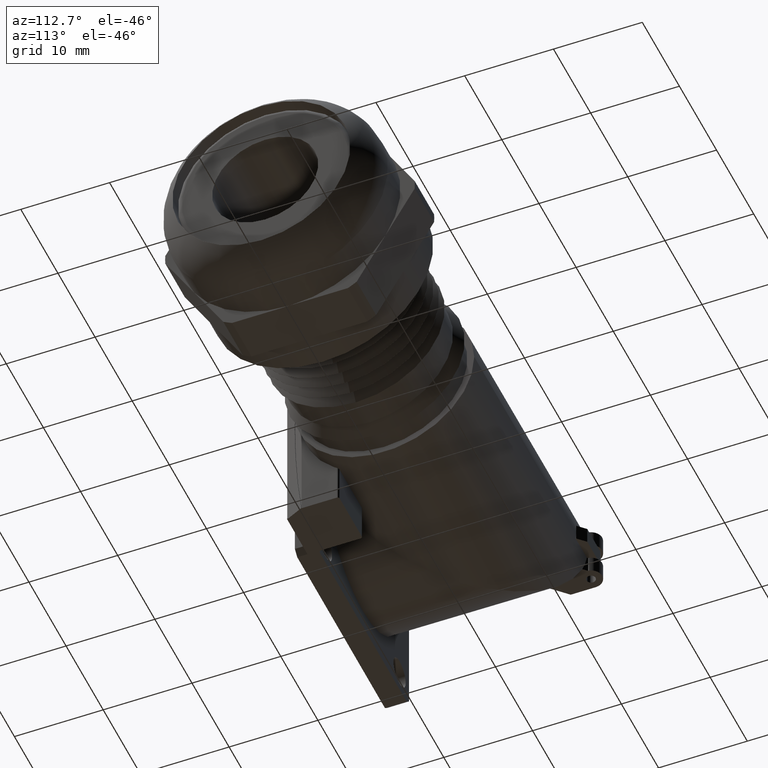
[diagram: clean part render]
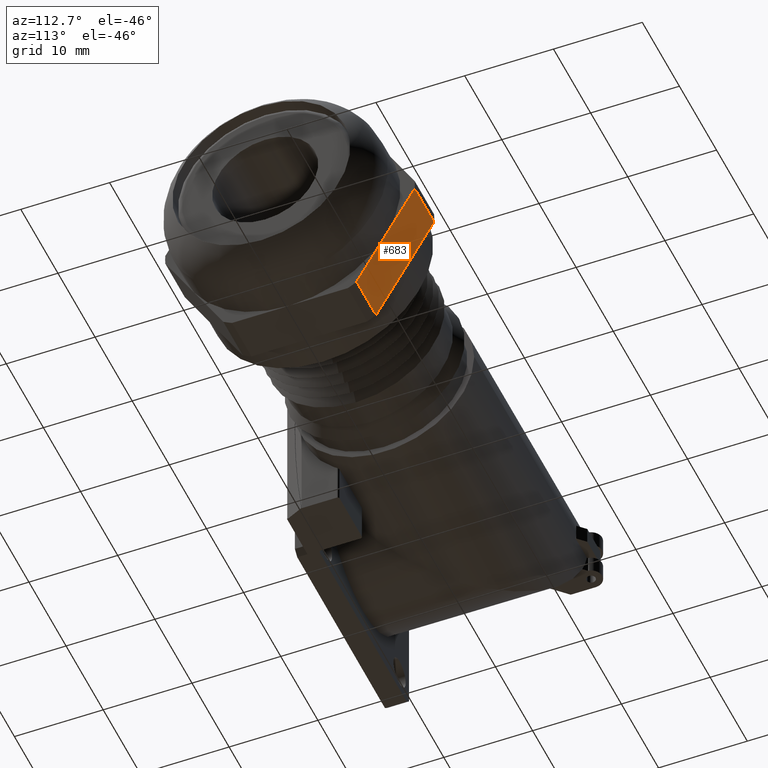
[diagram: same view with one face highlighted and labeled with its STEP entity id]
A machine part, auxiliary view. The second image highlights one B-rep face of the part: STEP entity #683.
In plain terms, the highlighted planar face has unit normal (0, 0.866, -0.5).
Its self-contained STEP definition (entity closure, byte-faithful):
#198 = VERTEX_POINT ( 'NONE', #2209 ) ;
#222 = VERTEX_POINT ( 'NONE', #2387 ) ;
#270 = EDGE_CURVE ( 'NONE', #271, #222, #2357, .T. ) ;
#271 = VERTEX_POINT ( 'NONE', #2353 ) ;
#276 = EDGE_CURVE ( 'NONE', #271, #277, #2346, .T. ) ;
#277 = VERTEX_POINT ( 'NONE', #2342 ) ;
#323 = VERTEX_POINT ( 'NONE', #2221 ) ;
#328 = EDGE_CURVE ( 'NONE', #343, #323, #2491, .T. ) ;
#342 = EDGE_CURVE ( 'NONE', #222, #343, #2696, .T. ) ;
#343 = VERTEX_POINT ( 'NONE', #2692 ) ;
#408 = EDGE_CURVE ( 'NONE', #323, #198, #2622, .T. ) ;
#412 = EDGE_CURVE ( 'NONE', #198, #277, #2607, .T. ) ;
#683 = ADVANCED_FACE ( 'NONE', ( #3046 ), #3045, .T. ) ;
#684 = EDGE_LOOP ( 'NONE', ( #712, #713, #714, #715, #716, #723 ) ) ;
#712 = ORIENTED_EDGE ( 'NONE', *, *, #276, .T. ) ;
#713 = ORIENTED_EDGE ( 'NONE', *, *, #412, .F. ) ;
#714 = ORIENTED_EDGE ( 'NONE', *, *, #408, .F. ) ;
#715 = ORIENTED_EDGE ( 'NONE', *, *, #328, .F. ) ;
#716 = ORIENTED_EDGE ( 'NONE', *, *, #342, .F. ) ;
#723 = ORIENTED_EDGE ( 'NONE', *, *, #270, .F. ) ;
#2209 = CARTESIAN_POINT ( 'NONE',  ( 0.9971533900000001400, 0.4243524478543749300, -0.2449999999999999400 ) ) ;
#2221 = CARTESIAN_POINT ( 'NONE',  ( 0.9971533900000001400, 0.2957400638133357300, -0.4677631836416404300 ) ) ;
#2342 = CARTESIAN_POINT ( 'NONE',  ( 0.9971533900000001400, 0.5529648318954140100, -0.02223681635835936600 ) ) ;
#2343 = DIRECTION ( 'NONE',  ( 1.000000000000000000, 0.0000000000000000000, 0.0000000000000000000 ) ) ;
#2344 = VECTOR ( 'NONE', #2343, 39.37007874015748100 ) ;
#2345 = CARTESIAN_POINT ( 'NONE',  ( -0.7897920749122514500, 0.5529648318954140100, -0.02223681635835936600 ) ) ;
#2346 = LINE ( 'NONE', #2345, #2344 ) ;
#2353 = CARTESIAN_POINT ( 'NONE',  ( 0.7911456200000003300, 0.5529648318954140100, -0.02223681635835936600 ) ) ;
#2354 = DIRECTION ( 'NONE',  ( 0.0000000000000000000, -0.4999999999999998900, -0.8660254037844386000 ) ) ;
#2355 = VECTOR ( 'NONE', #2354, 39.37007874015748900 ) ;
#2356 = CARTESIAN_POINT ( 'NONE',  ( 0.7911456200000003300, 0.2957400638133356700, -0.4677631836416404300 ) ) ;
#2357 = LINE ( 'NONE', #2356, #2355 ) ;
#2387 = CARTESIAN_POINT ( 'NONE',  ( 0.7911456200000003300, 0.4243524478543748700, -0.2449999999999999400 ) ) ;
#2488 = DIRECTION ( 'NONE',  ( 1.000000000000000000, 0.0000000000000000000, 0.0000000000000000000 ) ) ;
#2489 = VECTOR ( 'NONE', #2488, 39.37007874015748100 ) ;
#2490 = CARTESIAN_POINT ( 'NONE',  ( -0.7897920749122514500, 0.2957400638133357300, -0.4677631836416404300 ) ) ;
#2491 = LINE ( 'NONE', #2490, #2489 ) ;
#2604 = DIRECTION ( 'NONE',  ( 0.0000000000000000000, 0.4999999999999998300, 0.8660254037844386000 ) ) ;
#2605 = VECTOR ( 'NONE', #2604, 39.37007874015748900 ) ;
#2606 = CARTESIAN_POINT ( 'NONE',  ( 0.9971533900000001400, 0.2957400638133356700, -0.4677631836416404300 ) ) ;
#2607 = LINE ( 'NONE', #2606, #2605 ) ;
#2614 = DIRECTION ( 'NONE',  ( 0.0000000000000000000, 0.4999999999999998300, 0.8660254037844386000 ) ) ;
#2615 = VECTOR ( 'NONE', #2614, 39.37007874015748900 ) ;
#2616 = CARTESIAN_POINT ( 'NONE',  ( 0.9971533900000001400, 0.2957400638133356700, -0.4677631836416404300 ) ) ;
#2622 = LINE ( 'NONE', #2616, #2615 ) ;
#2692 = CARTESIAN_POINT ( 'NONE',  ( 0.7911456200000003300, 0.2957400638133357300, -0.4677631836416404300 ) ) ;
#2693 = DIRECTION ( 'NONE',  ( 0.0000000000000000000, -0.4999999999999998900, -0.8660254037844386000 ) ) ;
#2694 = VECTOR ( 'NONE', #2693, 39.37007874015748900 ) ;
#2695 = CARTESIAN_POINT ( 'NONE',  ( 0.7911456200000003300, 0.2957400638133356700, -0.4677631836416404300 ) ) ;
#2696 = LINE ( 'NONE', #2695, #2694 ) ;
#3040 = DIRECTION ( 'NONE',  ( 0.0000000000000000000, 0.4999999999999998900, 0.8660254037844386000 ) ) ;
#3041 = DIRECTION ( 'NONE',  ( 0.0000000000000000000, 0.8660254037844387100, -0.4999999999999999400 ) ) ;
#3042 = CARTESIAN_POINT ( 'NONE',  ( -0.7897920749122514500, 0.2957400638133356700, -0.4677631836416404300 ) ) ;
#3043 = AXIS2_PLACEMENT_3D ( 'NONE', #3042, #3041, #3040 ) ;
#3045 = PLANE ( 'NONE',  #3043 ) ;
#3046 = FACE_OUTER_BOUND ( 'NONE', #684, .T. ) ;